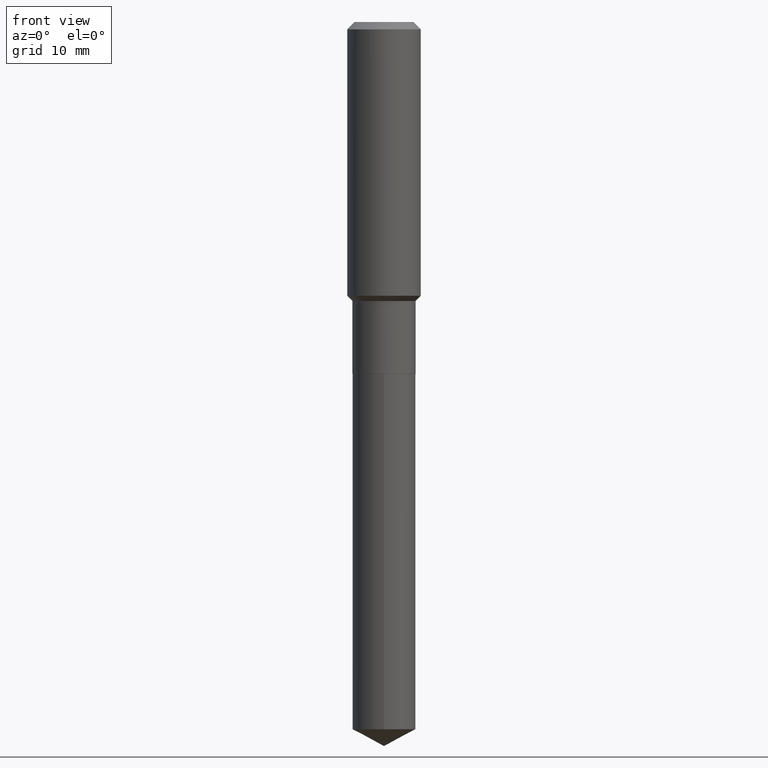
[diagram: clean part render]
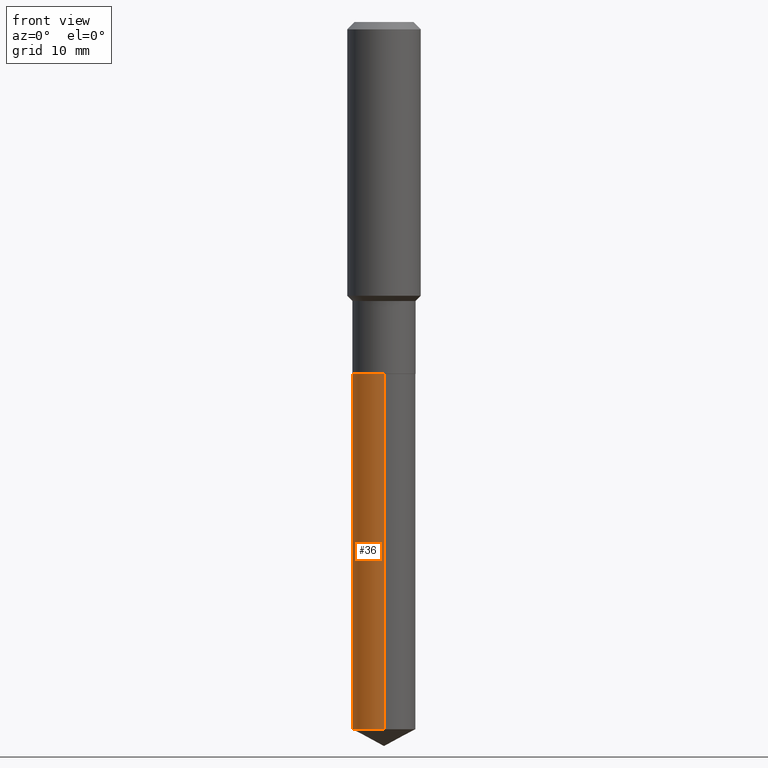
[diagram: same view with one face highlighted and labeled with its STEP entity id]
A machine part, front view. The second image highlights one B-rep face of the part: STEP entity #36.
In plain terms, the highlighted cylindrical surface (edge-blend (fillet) strip) has radius 5.1587 mm, axis along (-0, 0, 1).
Its self-contained STEP definition (entity closure, byte-faithful):
#36 = ADVANCED_FACE ( 'NONE', ( #152 ), #64, .T. ) ;
#42 = CARTESIAN_POINT ( 'NONE',  ( 1.443112296328874924E-15, 0.2030999999999921479, -2.257200000000000539 ) ) ;
#64 = CYLINDRICAL_SURFACE ( 'NONE', #112, 0.2031000000000000028 ) ;
#88 = DIRECTION ( 'NONE',  ( -2.445326593051058673E-29, 3.491684996145414062E-15, 1.000000000000000000 ) ) ;
#100 = VECTOR ( 'NONE', #393, 39.37007874015748143 ) ;
#112 = AXIS2_PLACEMENT_3D ( 'NONE', #296, #333, #483 ) ;
#117 = CARTESIAN_POINT ( 'NONE',  ( 1.443112296328874135E-15, 0.2030999999999841821, -4.538009814429555533 ) ) ;
#125 = CARTESIAN_POINT ( 'NONE',  ( 1.109723708223753094E-28, -1.584484108614163035E-14, -4.538009814429554645 ) ) ;
#128 = VERTEX_POINT ( 'NONE', #42 ) ;
#150 = EDGE_LOOP ( 'NONE', ( #432, #317, #253, #204 ) ) ;
#152 = FACE_OUTER_BOUND ( 'NONE', #150, .T. ) ;
#155 = EDGE_CURVE ( 'NONE', #371, #472, #417, .T. ) ;
#165 = VECTOR ( 'NONE', #198, 39.37007874015748143 ) ;
#198 = DIRECTION ( 'NONE',  ( -2.445326593051058953E-29, 3.491684996145414062E-15, 1.000000000000000000 ) ) ;
#204 = ORIENTED_EDGE ( 'NONE', *, *, #237, .F. ) ;
#213 = VERTEX_POINT ( 'NONE', #117 ) ;
#215 = CARTESIAN_POINT ( 'NONE',  ( 1.443112296328818323E-15, 0.2030999999999921202, -2.257200000000000539 ) ) ;
#237 = EDGE_CURVE ( 'NONE', #128, #472, #298, .T. ) ;
#253 = ORIENTED_EDGE ( 'NONE', *, *, #155, .T. ) ;
#281 = DIRECTION ( 'NONE',  ( -6.982962677686266711E-15, -1.000000000000000000, 4.035225987687242674E-15 ) ) ;
#296 = CARTESIAN_POINT ( 'NONE',  ( 5.519912189321090769E-29, -7.880971678036748100E-15, -2.257200000000000095 ) ) ;
#298 = CIRCLE ( 'NONE', #436, 0.2031000000000000028 ) ;
#317 = ORIENTED_EDGE ( 'NONE', *, *, #322, .T. ) ;
#322 = EDGE_CURVE ( 'NONE', #213, #371, #381, .T. ) ;
#333 = DIRECTION ( 'NONE',  ( -2.445326593051058673E-29, 3.491684996145414062E-15, 1.000000000000000000 ) ) ;
#360 = DIRECTION ( 'NONE',  ( -2.445326593051058673E-29, 3.491684996145414062E-15, 1.000000000000000000 ) ) ;
#371 = VERTEX_POINT ( 'NONE', #444 ) ;
#381 = CIRCLE ( 'NONE', #421, 0.2031000000000000028 ) ;
#383 = DIRECTION ( 'NONE',  ( -6.982962677686266711E-15, -1.000000000000000000, 2.690150658458161520E-15 ) ) ;
#393 = DIRECTION ( 'NONE',  ( -2.445326593051058953E-29, 3.491684996145414062E-15, 1.000000000000000000 ) ) ;
#412 = CARTESIAN_POINT ( 'NONE',  ( -1.418239719838025752E-15, -0.2031000000000079131, -2.257199999999999207 ) ) ;
#417 = LINE ( 'NONE', #412, #165 ) ;
#421 = AXIS2_PLACEMENT_3D ( 'NONE', #125, #360, #383 ) ;
#431 = CARTESIAN_POINT ( 'NONE',  ( -1.418239719838025752E-15, -0.2031000000000079131, -2.257199999999998763 ) ) ;
#432 = ORIENTED_EDGE ( 'NONE', *, *, #440, .F. ) ;
#436 = AXIS2_PLACEMENT_3D ( 'NONE', #489, #88, #281 ) ;
#439 = LINE ( 'NONE', #215, #100 ) ;
#440 = EDGE_CURVE ( 'NONE', #213, #128, #439, .T. ) ;
#444 = CARTESIAN_POINT ( 'NONE',  ( -1.418239719837969940E-15, -0.2031000000000158512, -4.538009814429553757 ) ) ;
#472 = VERTEX_POINT ( 'NONE', #431 ) ;
#483 = DIRECTION ( 'NONE',  ( -6.982962677686266711E-15, -1.000000000000000000, 4.035225987687242674E-15 ) ) ;
#489 = CARTESIAN_POINT ( 'NONE',  ( 5.519912189321089648E-29, -7.880971678036746522E-15, -2.257199999999999651 ) ) ;